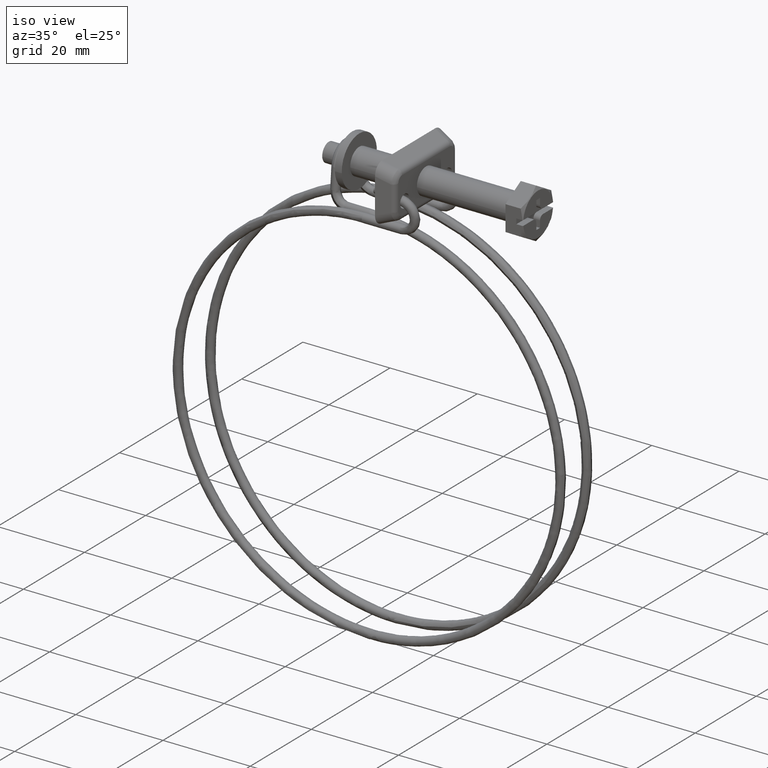
[diagram: clean part render]
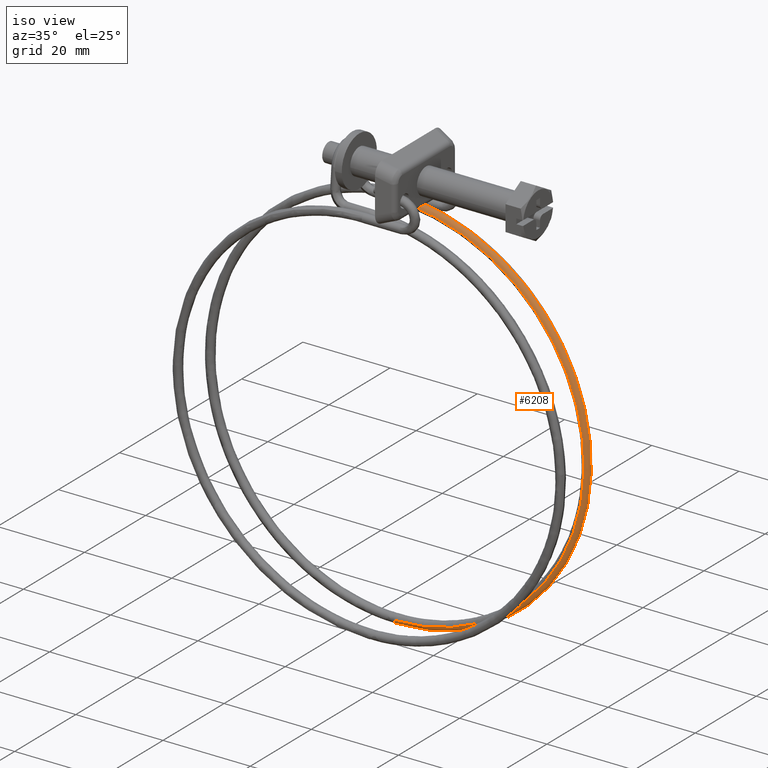
[diagram: same view with one face highlighted and labeled with its STEP entity id]
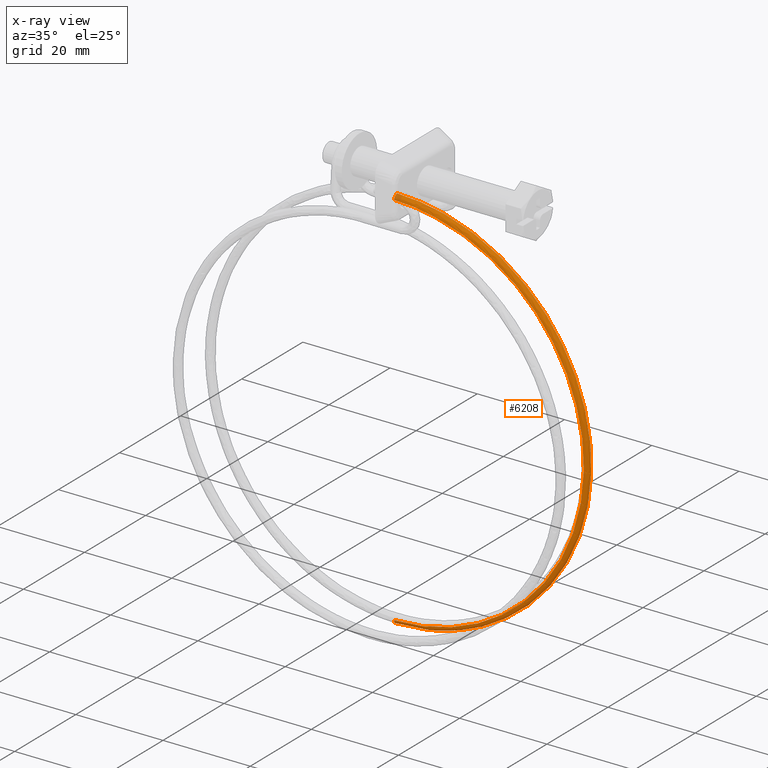
[diagram: x-ray of the same camera — body ghosted, the highlighted face saturated]
A machine part, iso view. The second image highlights one B-rep face of the part: STEP entity #6208.
The next image is the same camera in x-ray: the body ghosted, the highlighted face saturated — about 1% of this face is hidden behind the body in this view.
In plain terms, the highlighted face is a freeform B-spline surface patch.
Its self-contained STEP definition (entity closure, byte-faithful):
#5493=CARTESIAN_POINT('',(-31.350000000000001,3.300317810717848,-7.824870904533407));
#5494=VERTEX_POINT('',#5493);
#5510=CARTESIAN_POINT('',(-31.349996693093679,4.325132023679816,-6.850316808913101));
#5511=VERTEX_POINT('',#5510);
#5512=CARTESIAN_POINT('',(-31.350000000000005,3.300317810717849,-7.824870904533408));
#5513=CARTESIAN_POINT('',(-31.349998346546851,3.337389135704937,-6.850158904468334));
#5514=CARTESIAN_POINT('',(-31.349996693093679,4.325132023679816,-6.850316808913101));
#5522=(BOUNDED_CURVE()B_SPLINE_CURVE(2,(#5512,#5513,#5514),.UNSPECIFIED.,.F.,.U.)B_SPLINE_CURVE_WITH_KNOTS((3,3),(0.754420108238389,1.0),.UNSPECIFIED.)CURVE()GEOMETRIC_REPRESENTATION_ITEM()RATIONAL_B_SPLINE_CURVE((0.989826157663050,0.712285260104330,1.0))REPRESENTATION_ITEM(''));
#5523=EDGE_CURVE('',#5494,#5511,#5522,.T.);
#6087=CARTESIAN_POINT('',(-31.349999999994260,3.300325002941401,-94.875130895281302));
#6088=VERTEX_POINT('',#6087);
#6100=CARTESIAN_POINT('',(-31.349999999994257,3.300325002941401,-94.875130895281302));
#6101=CARTESIAN_POINT('',(11.902509204435635,3.300325002941401,-94.875130895275603));
#6102=CARTESIAN_POINT('',(12.174270946638689,3.300321429424513,-51.623475557787941));
#6103=CARTESIAN_POINT('',(12.449469317978595,3.300317810717849,-7.824870904533441));
#6104=CARTESIAN_POINT('',(-31.350000000000001,3.300317810717849,-7.824870904533408));
#6112=(BOUNDED_CURVE()B_SPLINE_CURVE(2,(#6100,#6101,#6102,#6103,#6104),.UNSPECIFIED.,.F.,.U.)B_SPLINE_CURVE_WITH_KNOTS((3,2,3),(-3.792515020814470,-2.0,-0.192000658020285),.UNSPECIFIED.)CURVE()GEOMETRIC_REPRESENTATION_ITEM()RATIONAL_B_SPLINE_CURVE((0.934811369271445,0.685815180528013,1.0,0.683101151025634,0.939155212471051))REPRESENTATION_ITEM(''));
#6113=EDGE_CURVE('',#6088,#5494,#6112,.T.);
#6119=CARTESIAN_POINT('',(-31.349999986310571,4.312567047722788,-95.849843094641699));
#6120=VERTEX_POINT('',#6119);
#6121=CARTESIAN_POINT('',(-31.349999986310571,4.312567047722788,-95.849843094641699));
#6122=CARTESIAN_POINT('',(12.870959151060083,4.312567047955721,-95.849843081035118));
#6123=CARTESIAN_POINT('',(13.148805803615231,4.318810062157335,-51.629678370034291));
#6124=CARTESIAN_POINT('',(13.430166012696827,4.325132023443937,-6.850320136665590));
#6125=CARTESIAN_POINT('',(-31.349996693093686,4.325132023679816,-6.850316808913101));
#6133=(BOUNDED_CURVE()B_SPLINE_CURVE(2,(#6121,#6122,#6123,#6124,#6125),.UNSPECIFIED.,.F.,.U.)B_SPLINE_CURVE_WITH_KNOTS((3,2,3),(-3.792515020436447,-2.0,-0.192000749802136),.UNSPECIFIED.)CURVE()GEOMETRIC_REPRESENTATION_ITEM()RATIONAL_B_SPLINE_CURVE((0.934811369166424,0.685815180594271,1.0,0.683101167112787,0.939155186474233))REPRESENTATION_ITEM(''));
#6134=EDGE_CURVE('',#6120,#5511,#6133,.T.);
#6161=CARTESIAN_POINT('',(-37.658473499321104,4.332316844885582,-95.400074562577430));
#6162=CARTESIAN_POINT('',(12.828173872353732,4.332316844885582,-102.630338924368560));
#6163=CARTESIAN_POINT('',(13.148625196702389,4.332316844885580,-51.629597787381606));
#6164=CARTESIAN_POINT('',(13.472937532153921,4.332316844885582,-0.014365734544937));
#6165=CARTESIAN_POINT('',(-37.627190105253590,4.332316844885581,-7.295458633263183));
#6166=CARTESIAN_POINT('',(-37.658486282361970,4.328729825315447,-95.400163822505490));
#6167=CARTESIAN_POINT('',(12.828263391855129,4.328729825315447,-102.630442835188750));
#6168=CARTESIAN_POINT('',(13.148715365543504,4.328729825315448,-51.629598353936643));
#6169=CARTESIAN_POINT('',(13.473028358158425,4.328729825315445,-0.014261711674136));
#6170=CARTESIAN_POINT('',(-37.627202824904039,4.328729825315447,-7.295369364279853));
#6171=CARTESIAN_POINT('',(-37.662061672327809,3.325447906161158,-95.425129638883575));
#6172=CARTESIAN_POINT('',(12.853301810355129,3.325447906161158,-102.659506475652520));
#6173=CARTESIAN_POINT('',(13.173935403011981,3.325447906161157,-51.629756818190792));
#6174=CARTESIAN_POINT('',(13.498432202861737,3.325447906161156,0.014833269106494));
#6175=CARTESIAN_POINT('',(-37.630760484695791,3.325447906161158,-7.270401015162678));
#6176=CARTESIAN_POINT('',(-37.517899750302348,3.299884850741082,-94.418492570371242));
#6177=CARTESIAN_POINT('',(11.843737379641572,3.299884850741082,-101.487642620143300));
#6178=CARTESIAN_POINT('',(12.157047983807036,3.299884850741081,-51.623367442018328));
#6179=CARTESIAN_POINT('',(12.474133562920077,3.299884850741082,-1.158294247251097));
#6180=CARTESIAN_POINT('',(-37.487313454191501,3.299884850741081,-8.277140205273328));
#6181=CARTESIAN_POINT('',(-37.515492690566333,3.299458026510613,-94.401684834164854));
#6182=CARTESIAN_POINT('',(11.826880765509607,3.299458026510610,-101.468076105885710));
#6183=CARTESIAN_POINT('',(12.140069098339508,3.299458026510613,-51.623260759130766));
#6184=CARTESIAN_POINT('',(12.457030932910433,3.299458026510610,-1.177881860749773));
#6185=CARTESIAN_POINT('',(-37.484918330940310,3.299458026510612,-8.293949646595692));
#6193=(BOUNDED_SURFACE()B_SPLINE_SURFACE(2,2,((#6161,#6166,#6171,#6176,#6181),(#6162,#6167,#6172,#6177,#6182),(#6163,#6168,#6173,#6178,#6183),(#6164,#6169,#6174,#6179,#6184),(#6165,#6170,#6175,#6180,#6185)),.UNSPECIFIED.,.F.,.F.,.U.)B_SPLINE_SURFACE_WITH_KNOTS((3,2,3),(3,1,1,3),(0.0,80.923722952488546,162.482749908808590),(0.0,0.008445257925747,1.665299507418127,1.705959127777958),.UNSPECIFIED.)GEOMETRIC_REPRESENTATION_ITEM()RATIONAL_B_SPLINE_SURFACE(((0.993402219103256,0.991923559362412,0.700350304914040,0.997563894000742,1.004682888379916),(0.656246166849069,0.655269357286595,0.462654697375549,0.658995388812367,0.663698229900612),(1.002985849574083,1.001492924787041,0.707106781186548,1.007187673319227,1.014375346638453),(0.653524034195189,0.652551276473840,0.460735589085372,0.656261852287109,0.660945185821728),(0.998738159279711,0.997251557096454,0.704112152087038,1.002922188111848,1.010079421310498)))REPRESENTATION_ITEM('')SURFACE());
#6194=CARTESIAN_POINT('',(-31.349999999994260,3.300325002941401,-94.875130895281302));
#6195=CARTESIAN_POINT('',(-31.349999998214908,3.308607524453388,-95.128357976368804));
#6196=CARTESIAN_POINT('',(-31.349999995758871,3.417584144309474,-95.377863777992928));
#6197=CARTESIAN_POINT('',(-31.349999990710209,3.786538112296210,-95.742120829314501));
#6198=CARTESIAN_POINT('',(-31.349999988147360,4.049080067952477,-95.849864315874413));
#6199=CARTESIAN_POINT('',(-31.349999986310571,4.312567047722788,-95.849843094641699));
#6200=B_SPLINE_CURVE_WITH_KNOTS('',3,(#6194,#6195,#6196,#6197,#6198,#6199),.UNSPECIFIED.,.F.,.U.,(4,2,4),(0.754000688758450,0.875000000000000,1.0),.UNSPECIFIED.);
#6201=EDGE_CURVE('',#6088,#6120,#6200,.T.);
#6202=ORIENTED_EDGE('',*,*,#6201,.T.);
#6203=ORIENTED_EDGE('',*,*,#6134,.T.);
#6204=ORIENTED_EDGE('',*,*,#5523,.F.);
#6205=ORIENTED_EDGE('',*,*,#6113,.F.);
#6206=EDGE_LOOP('',(#6202,#6203,#6204,#6205));
#6207=FACE_OUTER_BOUND('',#6206,.T.);
#6208=ADVANCED_FACE('',(#6207),#6193,.T.);